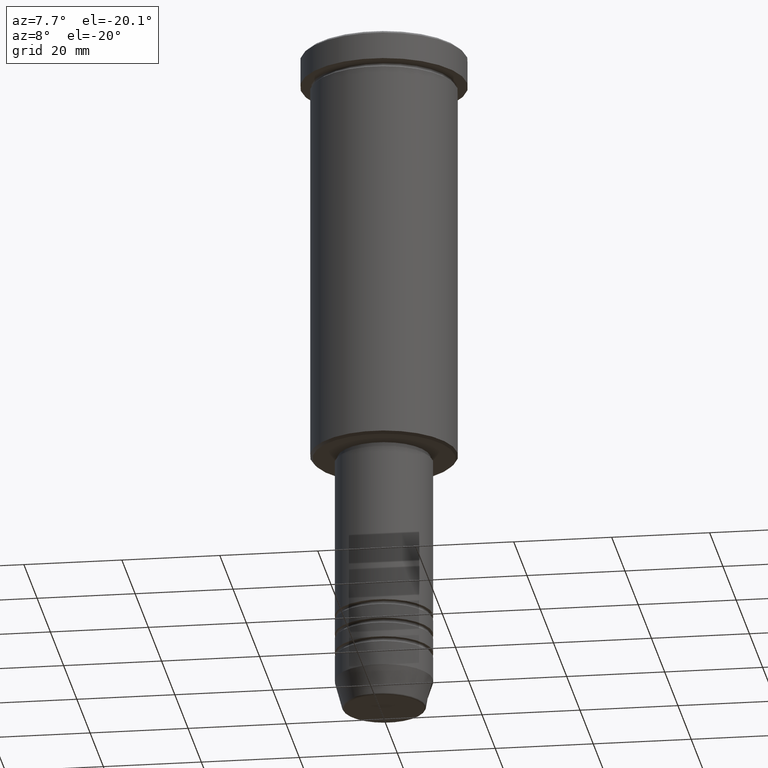
[diagram: clean part render]
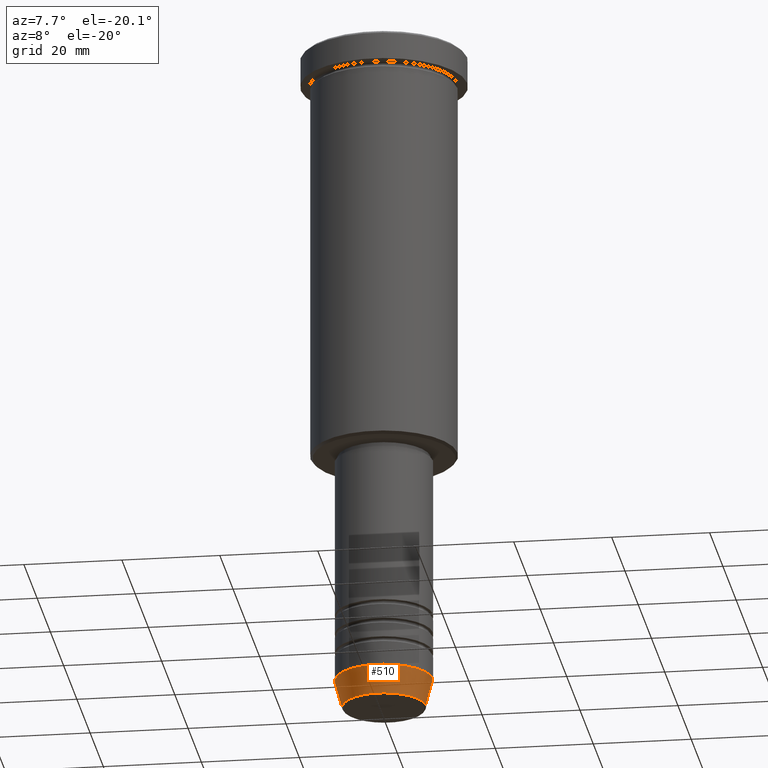
[diagram: same view with one face highlighted and labeled with its STEP entity id]
A machine part, auxiliary view. The second image highlights one B-rep face of the part: STEP entity #510.
In plain terms, the highlighted conical surface has half-angle 15 deg.
Its self-contained STEP definition (entity closure, byte-faithful):
#13 = CIRCLE ( 'NONE', #701, 10.00000000000000178 ) ;
#16 = DIRECTION ( 'NONE',  ( 0.2588190451025214056, 0.000000000000000000, 0.9659258262890680902 ) ) ;
#21 = FACE_OUTER_BOUND ( 'NONE', #590, .T. ) ;
#46 = LINE ( 'NONE', #294, #521 ) ;
#69 = DIRECTION ( 'NONE',  ( -0.000000000000000000, -0.000000000000000000, 1.000000000000000000 ) ) ;
#97 = CARTESIAN_POINT ( 'NONE',  ( 0.000000000000000000, 0.000000000000000000, -139.6294095225512706 ) ) ;
#128 = ORIENTED_EDGE ( 'NONE', *, *, #850, .F. ) ;
#284 = DIRECTION ( 'NONE',  ( -0.000000000000000000, -0.000000000000000000, 1.000000000000000000 ) ) ;
#294 = CARTESIAN_POINT ( 'NONE',  ( 10.00000000000000178, 0.000000000000000000, -134.0000000000000000 ) ) ;
#329 = ORIENTED_EDGE ( 'NONE', *, *, #1035, .T. ) ;
#330 = CARTESIAN_POINT ( 'NONE',  ( -8.491604264568316296, 1.132284198685156781E-15, -139.6294095225512706 ) ) ;
#382 = CIRCLE ( 'NONE', #601, 8.491604264568316296 ) ;
#387 = CARTESIAN_POINT ( 'NONE',  ( 8.491604264568316296, 0.000000000000000000, -139.6294095225512706 ) ) ;
#504 = EDGE_CURVE ( 'NONE', #1130, #657, #46, .T. ) ;
#510 = ADVANCED_FACE ( 'NONE', ( #21 ), #677, .T. ) ;
#521 = VECTOR ( 'NONE', #16, 1000.000000000000000 ) ;
#546 = LINE ( 'NONE', #808, #803 ) ;
#587 = ORIENTED_EDGE ( 'NONE', *, *, #504, .T. ) ;
#590 = EDGE_LOOP ( 'NONE', ( #884, #329, #587, #128 ) ) ;
#601 = AXIS2_PLACEMENT_3D ( 'NONE', #97, #284, #743 ) ;
#615 = CARTESIAN_POINT ( 'NONE',  ( -10.00000000000000178, 1.224646799147353454E-15, -134.0000000000000000 ) ) ;
#634 = DIRECTION ( 'NONE',  ( 1.000000000000000000, 0.000000000000000000, 0.000000000000000000 ) ) ;
#657 = VERTEX_POINT ( 'NONE', #866 ) ;
#677 = CONICAL_SURFACE ( 'NONE', #1158, 10.00000000000000178, 0.2617993877991501295 ) ;
#701 = AXIS2_PLACEMENT_3D ( 'NONE', #816, #69, #1055 ) ;
#743 = DIRECTION ( 'NONE',  ( 1.000000000000000000, 0.000000000000000000, 0.000000000000000000 ) ) ;
#803 = VECTOR ( 'NONE', #1141, 1000.000000000000000 ) ;
#808 = CARTESIAN_POINT ( 'NONE',  ( -10.00000000000000178, 1.224646799147353454E-15, -134.0000000000000000 ) ) ;
#816 = CARTESIAN_POINT ( 'NONE',  ( 0.000000000000000000, 0.000000000000000000, -134.0000000000000000 ) ) ;
#843 = VERTEX_POINT ( 'NONE', #615 ) ;
#850 = EDGE_CURVE ( 'NONE', #843, #657, #13, .T. ) ;
#854 = EDGE_CURVE ( 'NONE', #893, #843, #546, .T. ) ;
#866 = CARTESIAN_POINT ( 'NONE',  ( 10.00000000000000178, 0.000000000000000000, -134.0000000000000000 ) ) ;
#884 = ORIENTED_EDGE ( 'NONE', *, *, #854, .F. ) ;
#893 = VERTEX_POINT ( 'NONE', #330 ) ;
#926 = DIRECTION ( 'NONE',  ( -0.000000000000000000, -0.000000000000000000, 1.000000000000000000 ) ) ;
#1035 = EDGE_CURVE ( 'NONE', #893, #1130, #382, .T. ) ;
#1055 = DIRECTION ( 'NONE',  ( 1.000000000000000000, 0.000000000000000000, 0.000000000000000000 ) ) ;
#1110 = CARTESIAN_POINT ( 'NONE',  ( 0.000000000000000000, 0.000000000000000000, -134.0000000000000000 ) ) ;
#1130 = VERTEX_POINT ( 'NONE', #387 ) ;
#1141 = DIRECTION ( 'NONE',  ( -0.2588190451025214056, 3.169619151431772953E-17, 0.9659258262890680902 ) ) ;
#1158 = AXIS2_PLACEMENT_3D ( 'NONE', #1110, #926, #634 ) ;